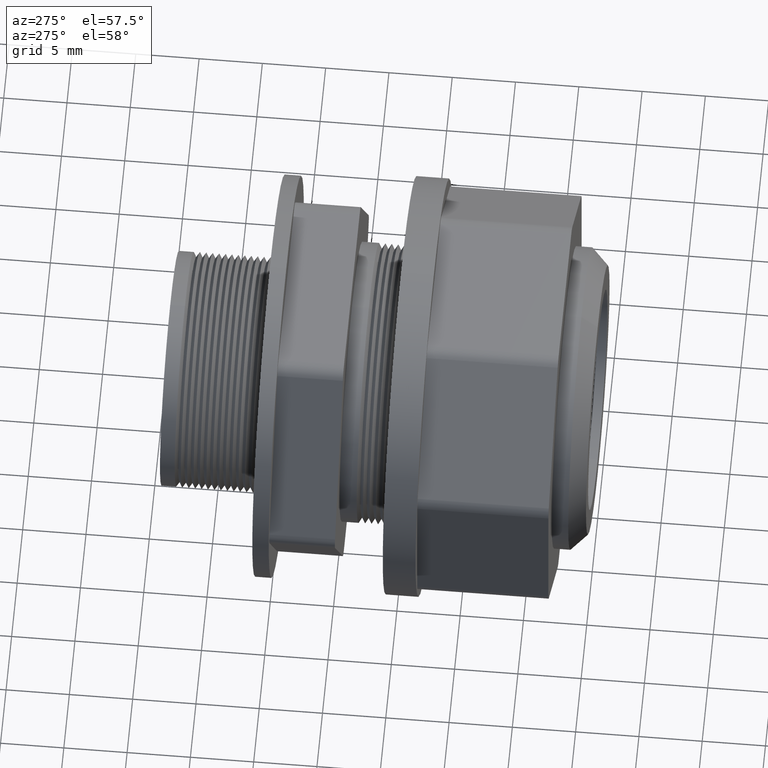
[diagram: clean part render]
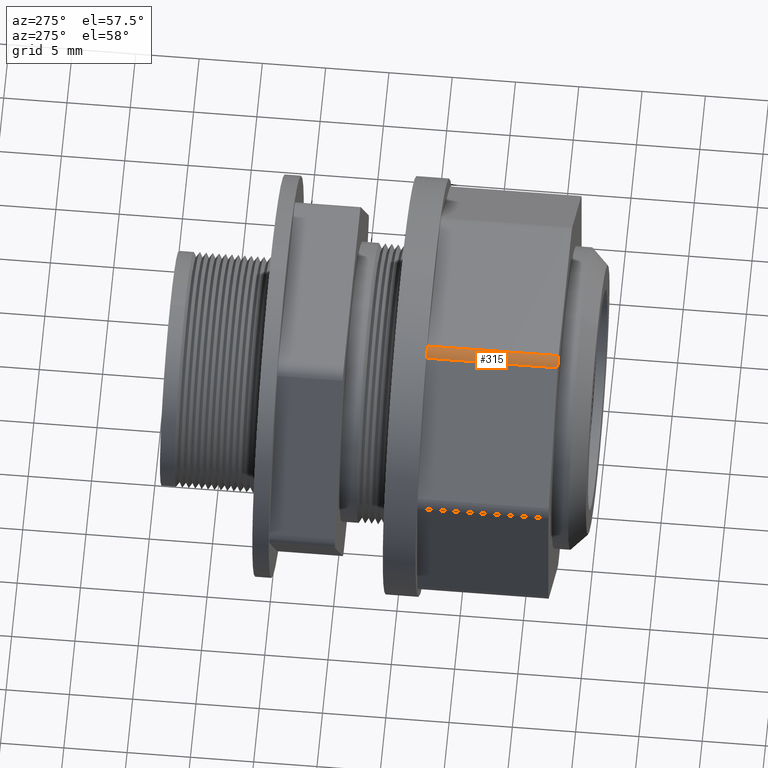
[diagram: same view with one face highlighted and labeled with its STEP entity id]
A machine part, auxiliary view. The second image highlights one B-rep face of the part: STEP entity #315.
In plain terms, the highlighted cylindrical surface (edge-blend (fillet) strip) has radius 1.27 mm, axis along (0, -1, 0).
Its self-contained STEP definition (entity closure, byte-faithful):
#87 = VERTEX_POINT ( 'NONE', #1344 ) ;
#96 = EDGE_CURVE ( 'NONE', #87, #97, #1372, .T. ) ;
#97 = VERTEX_POINT ( 'NONE', #1425 ) ;
#154 = VERTEX_POINT ( 'NONE', #1582 ) ;
#240 = VERTEX_POINT ( 'NONE', #1791 ) ;
#243 = EDGE_CURVE ( 'NONE', #154, #240, #1714, .T. ) ;
#307 = EDGE_CURVE ( 'NONE', #240, #87, #1678, .T. ) ;
#311 = EDGE_CURVE ( 'NONE', #97, #154, #1674, .T. ) ;
#315 = ADVANCED_FACE ( 'NONE', ( #1657 ), #1656, .T. ) ;
#326 = ORIENTED_EDGE ( 'NONE', *, *, #311, .F. ) ;
#419 = ORIENTED_EDGE ( 'NONE', *, *, #243, .F. ) ;
#429 = EDGE_LOOP ( 'NONE', ( #430, #431, #419, #326 ) ) ;
#430 = ORIENTED_EDGE ( 'NONE', *, *, #96, .F. ) ;
#431 = ORIENTED_EDGE ( 'NONE', *, *, #307, .F. ) ;
#1344 = CARTESIAN_POINT ( 'NONE',  ( -0.2590306627407987200, 0.5100000000000000100, 0.5753553390593274500 ) ) ;
#1371 = AXIS2_PLACEMENT_3D ( 'NONE', #1376, #1427, #1426 ) ;
#1372 = CIRCLE ( 'NONE', #1371, 0.05000000000000001000 ) ;
#1376 = CARTESIAN_POINT ( 'NONE',  ( -0.2236753236814713100, 0.5100000000000000100, 0.5400000000000000400 ) ) ;
#1425 = CARTESIAN_POINT ( 'NONE',  ( -0.2236753236814713100, 0.5100000000000000100, 0.5900000000000000800 ) ) ;
#1426 = DIRECTION ( 'NONE',  ( 2.048885995248196900E-015, 0.0000000000000000000, -1.000000000000000000 ) ) ;
#1427 = DIRECTION ( 'NONE',  ( -0.0000000000000000000, 1.000000000000000000, -0.0000000000000000000 ) ) ;
#1582 = CARTESIAN_POINT ( 'NONE',  ( -0.2236753236814713100, 0.1019999999999999900, 0.5900000000000000800 ) ) ;
#1652 = DIRECTION ( 'NONE',  ( 0.0000000000000000000, 0.0000000000000000000, -1.000000000000000000 ) ) ;
#1653 = DIRECTION ( 'NONE',  ( 0.0000000000000000000, -1.000000000000000000, 0.0000000000000000000 ) ) ;
#1654 = CARTESIAN_POINT ( 'NONE',  ( -0.2236753236814713100, 0.5100000000000000100, 0.5400000000000000400 ) ) ;
#1655 = AXIS2_PLACEMENT_3D ( 'NONE', #1654, #1653, #1652 ) ;
#1656 = CYLINDRICAL_SURFACE ( 'NONE', #1655, 0.05000000000000001000 ) ;
#1657 = FACE_OUTER_BOUND ( 'NONE', #429, .T. ) ;
#1658 = DIRECTION ( 'NONE',  ( 0.0000000000000000000, -1.000000000000000000, 0.0000000000000000000 ) ) ;
#1659 = VECTOR ( 'NONE', #1658, 39.37007874015748100 ) ;
#1673 = CARTESIAN_POINT ( 'NONE',  ( -0.2236753236814713100, 0.5100000000000000100, 0.5900000000000000800 ) ) ;
#1674 = LINE ( 'NONE', #1673, #1659 ) ;
#1675 = DIRECTION ( 'NONE',  ( -0.0000000000000000000, 1.000000000000000000, -0.0000000000000000000 ) ) ;
#1676 = VECTOR ( 'NONE', #1675, 39.37007874015748100 ) ;
#1677 = CARTESIAN_POINT ( 'NONE',  ( -0.2590306627407987200, 0.5100000000000000100, 0.5753553390593274500 ) ) ;
#1678 = LINE ( 'NONE', #1677, #1676 ) ;
#1710 = DIRECTION ( 'NONE',  ( 0.0000000000000000000, 0.0000000000000000000, -1.000000000000000000 ) ) ;
#1711 = DIRECTION ( 'NONE',  ( 0.0000000000000000000, -1.000000000000000000, 0.0000000000000000000 ) ) ;
#1712 = CARTESIAN_POINT ( 'NONE',  ( -0.2236753236814713100, 0.1020000000000000400, 0.5400000000000000400 ) ) ;
#1713 = AXIS2_PLACEMENT_3D ( 'NONE', #1712, #1711, #1710 ) ;
#1714 = CIRCLE ( 'NONE', #1713, 0.05000000000000001000 ) ;
#1791 = CARTESIAN_POINT ( 'NONE',  ( -0.2590306627407986700, 0.1019999999999999900, 0.5753553390593274500 ) ) ;